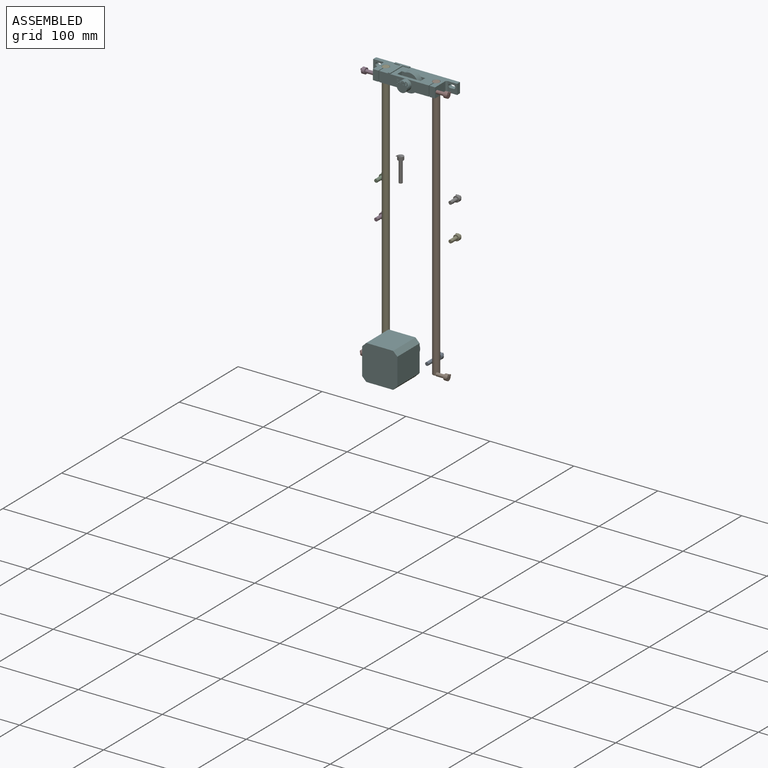
[diagram: assembled view]
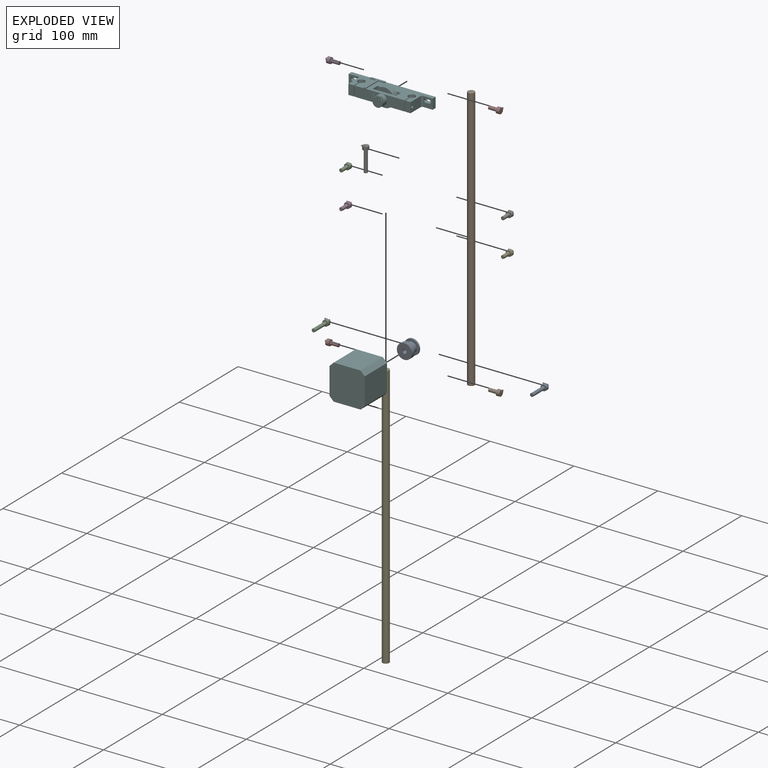
[diagram: exploded view]
GUIDED TOUR — MATED ASSEMBLY WITH SUBASSEMBLIES (Onshape document 57066dcde4b0fd3bf2ad620b, AutoMate assembly 57066dcde4b0fd3bf2ad620b_f562a61df4c0aba7eec617d7_5c54b8a93cd9b93062b6638a_default)

This assembly has 18 component occurrences arranged in 16 top-level units: 15 individual components plus 1 subassembly (S0). The tour has two levels: first the top level, where each subassembly is treated as one rigid unit; then each subassembly is toured internally in its own section (nesting deeper than one subassembly level is flattened into its subassembly's section).

Components are labeled P0..P17 across the whole record; subassembly units are labeled S0..S0. A mate is a constraint between two units; its type names the relative motion it leaves free:
  FASTENED — locks the two components together rigidly (no relative motion).
Axis/direction vectors are unit vectors and 'through' points are millimeter coordinates, both in the assembly's world frame.

TOP-LEVEL MATES (between units; each subassembly's internal mates are listed in its own section)
  1. FASTENED "Fastened 1": S0 <-> P14, direction (0.000, 0.000, 1.000) through (19.94, 8.96, 154.14) mm
  2. FASTENED "Fastened 13": P7 <-> S0, direction (-1.000, 0.000, 0.000) through (86.94, -0.08, 148.14) mm
  3. FASTENED "Fastened 12": P12 <-> S0, direction (1.000, 0.000, 0.000) through (12.94, -0.11, 148.14) mm
  4. FASTENED "Fastened 16": P8 <-> P15, direction (0.000, 1.000, 0.000) through (49.94, -2.31, -140.36) mm

TOP-LEVEL ASSEMBLY ORDER
  1. P8 — the base component [order verified]
  2. P15 [order verified]
  3. P14 [order verified]
  4. P10 [order verified]
  5. S0 [order verified]
  6. P16 [order verified]
  7. P7 [order verified]
  8. P12 [order verified]
  9. P6 [order verified]
  10. P4 [order verified]
  11. P3 [order verified]
  12. P11 [order verified]
  13. P17 [order verified]
  14. P1 [order verified]
  15. P2 [order verified]
  16. P0 [order verified]
Order-tag legend:
  [order verified] — this step's position reverses a verified removal order: the component was checked to insert without passing through the ones already placed.

Of the 18 component occurrences, 1 carries the full construction recipe — the FeatureScript program that regenerates the part's solid from scratch; the rest are supplied as boundary geometry only. Each toured unit is shown spotlighted twice — assembled, then exploded with a leader line back to its socket (green = recipe-attached component, orange = geometry-only, blue = subassembly unit; the rest desaturated gray).
NOTE — this tour is split across 2 documents so each fits a 32k-token context. This is document 1: the component sections continue in the remaining 1 document, each repeating the header above.
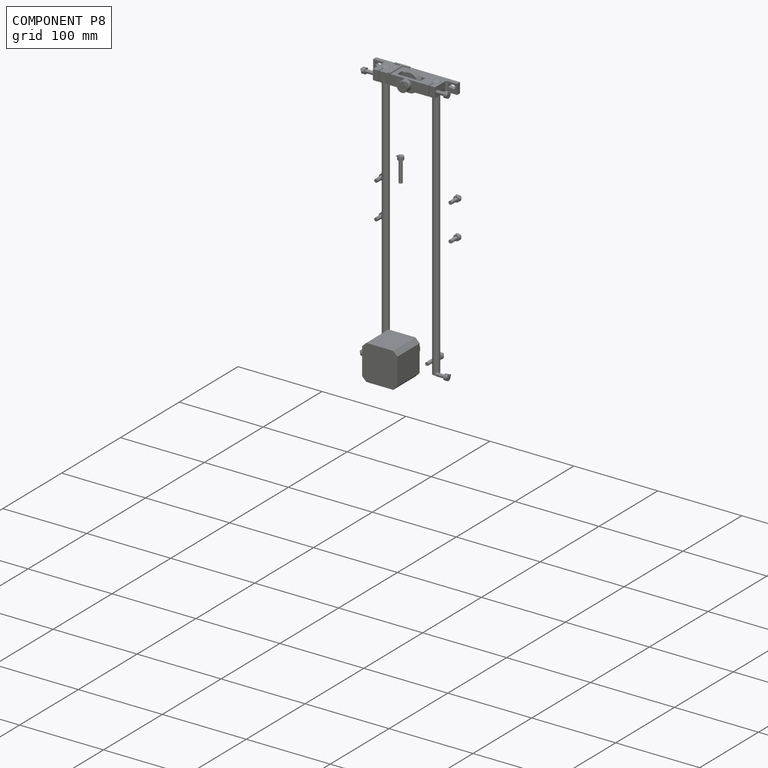
[diagram: component P8 — assembled]
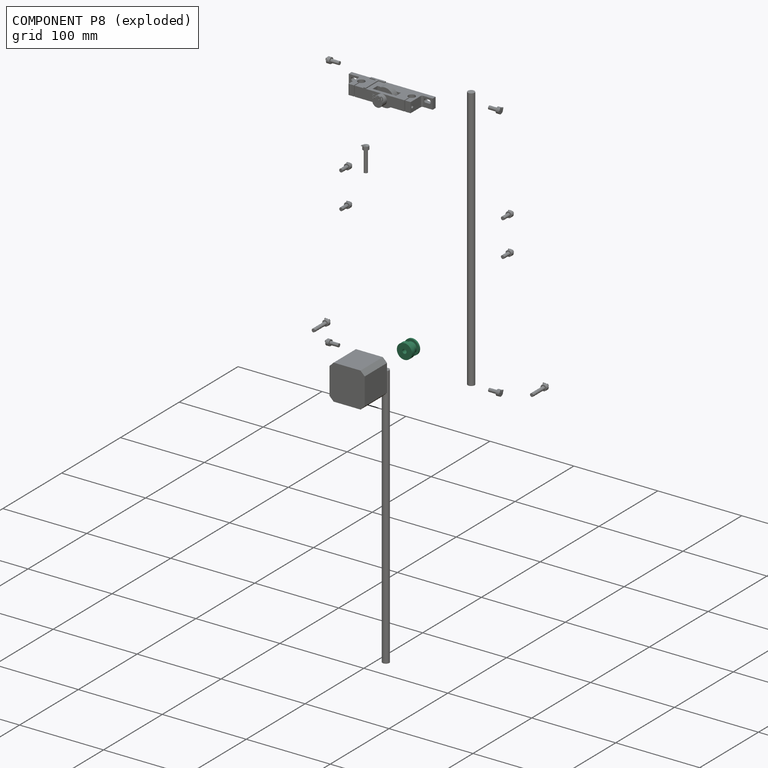
[diagram: component P8 — exploded]
COMPONENT P8 — recipe-attached (CADFS 00950962, mesh-verified: the recipe's output STEP matches this component's geometry to below the mesh-comparison resolution (tessellation chordal tolerance ~0.0435 mm)).
Held by: FASTENED mate "Fastened 16" to P15.
Construction recipe (FeatureScript — the CAD program that rebuilds this solid; sketch coordinates are in the units given by the * unit suffixes, e.g. mm):

FeatureScript 1511;
import(path : "onshape/std/geometry.fs", version : "1511.0");
import(path : "onshape/std/common.fs", version : "1511.0");
const mm = millimeter;
const VERTEX = EntityType.VERTEX;
const EDGE = EntityType.EDGE;
const FACE = EntityType.FACE;
const BODY = EntityType.BODY;
function v(x, y){return vector(x, y);}
function OD(order){return orderDisambiguation(order);}
function OSD(set){return originalSetDisambiguation(set);}
function TD(topology){return topologyDisambiguation(topology);}
function TDD(query){return trueDependencyDisambiguation(query);}
function sQuery(a, b, c) {return sketchEntityQuery(a, b, c);}

annotation { "Feature Type Name" : "Feature", "Feature Type Description" : "" }
export const myFeature = defineFeature(function(context is Context, id is Id, definition is map)
    precondition{}
    {
        {
            var Q0;
            Q0=qCreatedBy(makeId("Top.planeOp"),FACE);
            var sketch = newSketch(context, id + "F0", { "sketchPlane" : qUnion([Q0])});
            skCircle(sketch, "E0", {"center": v(0, 0) * mm, "radius": 9 * mm});
            skSolve(sketch);
        }
        {
            var Q0;
            Q0=qSketchRegion(id+"F0",true);
            extrude(context, id + "F1", {"entities" : qUnion([Q0]), "depth" : 5 * mm});
        }
        {
            var Q0;
            Q0=makeQuery(id+"F1.opExtrude","CAP_FACE",FACE,{"disambiguationData":[OSD([sQuery(id+"F0.wireOp",EDGE,"E0")])],"isStart":false});
            var sketch = newSketch(context, id + "F2", { "sketchPlane" : qUnion([Q0])});
            skCircle(sketch, "E1", {"center": v(0, 0) * mm, "radius": 6.2 * mm});
            skSolve(sketch);
        }
        {
            var Q0;
            Q0=qSketchRegion(id+"F2",true);
            extrude(context, id + "F3", {"entities" : qUnion([Q0]), "operationType" : NewBodyOperationType.ADD, "depth" : 7 * mm});
        }
        {
            var Q0;
            Q0=makeQuery(id+"F3.opExtrude","CAP_FACE",FACE,{"disambiguationData":[OSD([sQuery(id+"F2.wireOp",EDGE,"E1")])],"isStart":false});
            var sketch = newSketch(context, id + "F4", { "sketchPlane" : qUnion([Q0])});
            skCircle(sketch, "E2", {"center": v(0, 0) * mm, "radius": 9 * mm});
            skSolve(sketch);
        }
        {
            var Q0;
            Q0=qSketchRegion(id+"F4",true);
            extrude(context, id + "F5", {"entities" : qUnion([Q0]), "operationType" : NewBodyOperationType.ADD, "depth" : 2 * mm});
        }
        {
            var Q0;
            Q0=makeQuery(id+"F5.opExtrude","CAP_FACE",FACE,{"disambiguationData":[OSD([sQuery(id+"F4.wireOp",EDGE,"E2")])],"isStart":false});
            var sketch = newSketch(context, id + "F6", { "sketchPlane" : qUnion([Q0])});
            skCircle(sketch, "E3", {"center": v(0, 0) * mm, "radius": 2.5 * mm});
            skSolve(sketch);
        }
        {
            var Q0;
            Q0=qSketchRegion(id+"F6",true);
            extrude(context, id + "F7", {"entities" : qUnion([Q0]), "operationType" : NewBodyOperationType.REMOVE, "oppositeDirection" : true, "depth" : 25 * mm});
        }
    });
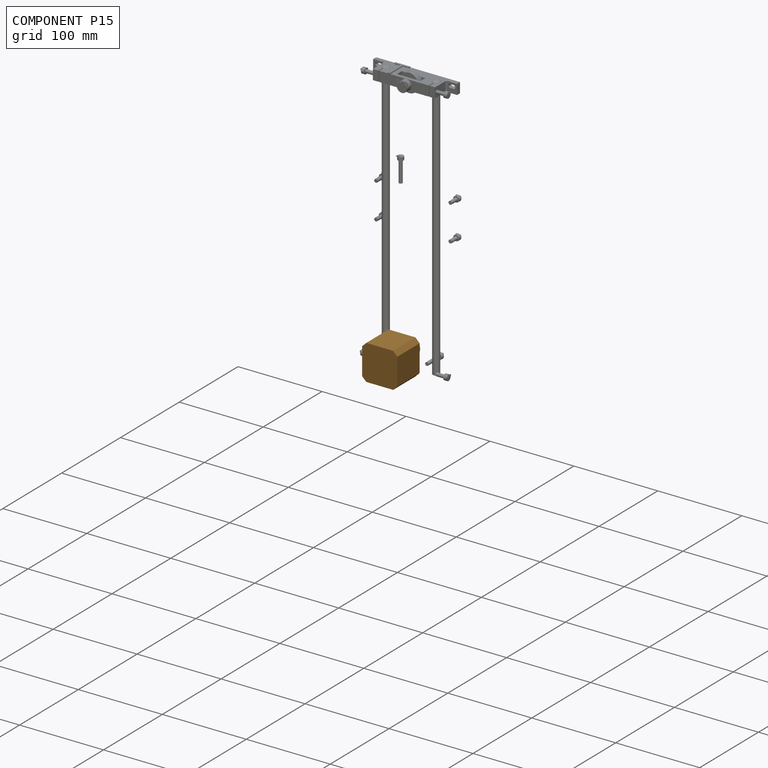
[diagram: component P15 — assembled]
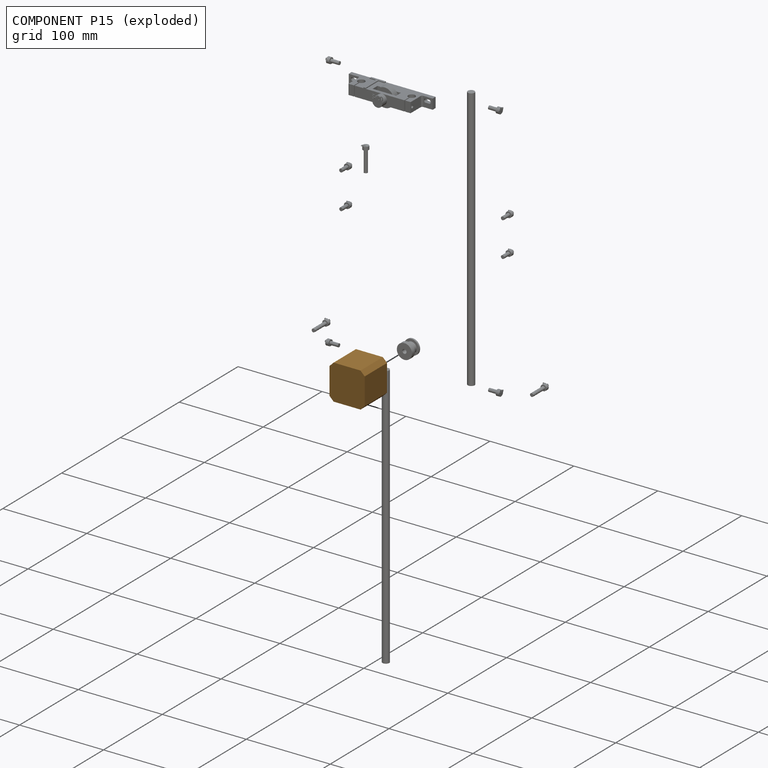
[diagram: component P15 — exploded]
COMPONENT P15 — geometry summary (no construction recipe available for this part):
  bounding box: 62.0 x 42.0 x 42.0 mm
  B-rep topology: 1 solid, 22 faces, 84 edges
  volume: 65617 mm^3 (60% of its bounding box)
  symmetry: 4-fold rotationally symmetric about the z axis; mirror-symmetric across its x mid-plane, y mid-plane
Held by: FASTENED mate "Fastened 16" to P8.
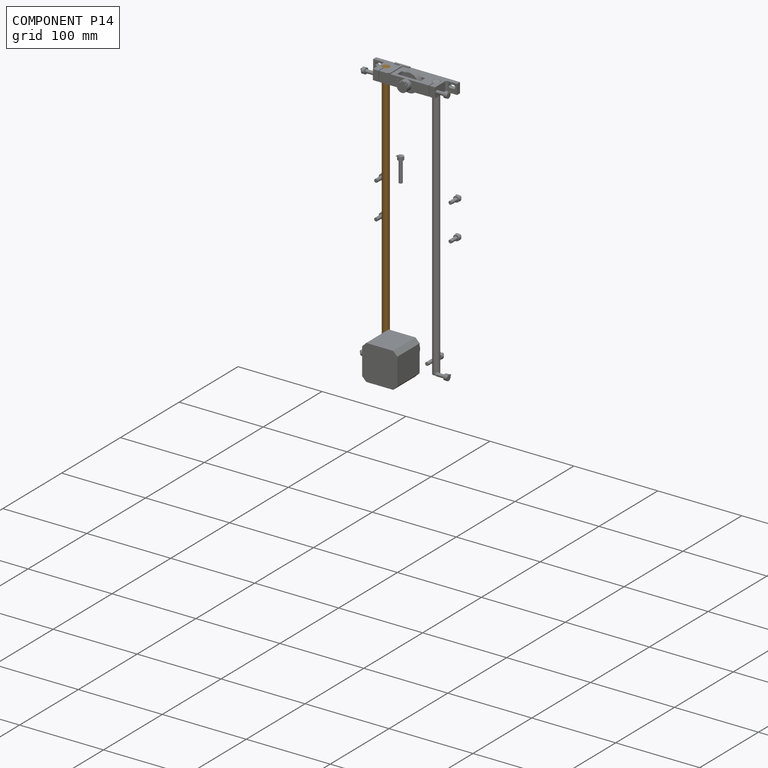
[diagram: component P14 — assembled]
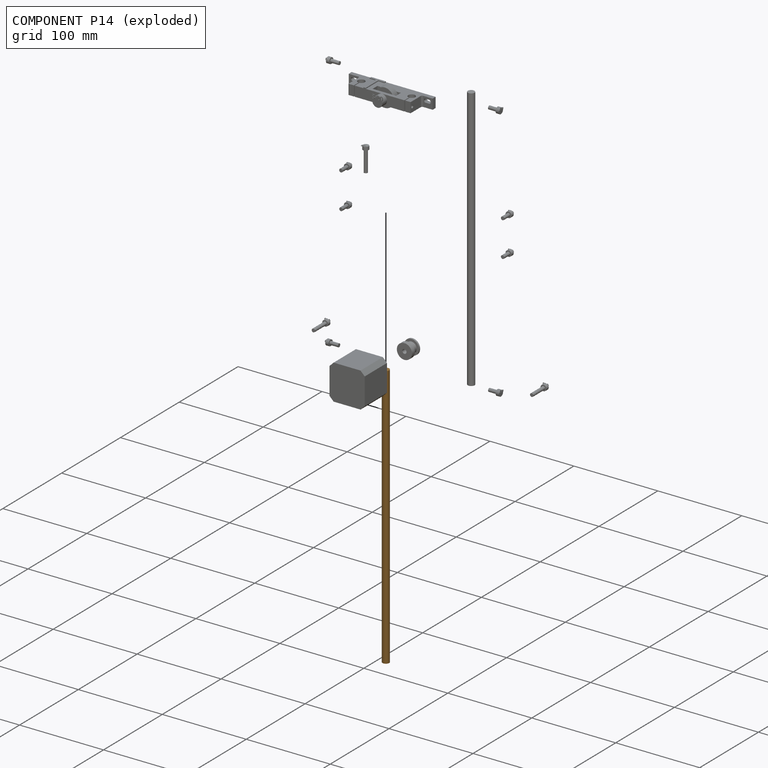
[diagram: component P14 — exploded]
COMPONENT P14 — geometry summary (no construction recipe available for this part):
  bounding box: 315.0 x 8.0 x 8.0 mm
  B-rep topology: 1 solid, 3 faces, 6 edges
  volume: 15834 mm^3 (79% of its bounding box)
  symmetry: 2-fold rotationally symmetric about the x axis; 2-fold rotationally symmetric about the y axis; revolution-symmetric about the z axis through its bounding-box center; mirror-symmetric across its x mid-plane, y mid-plane, z mid-plane
Held by: FASTENED mate "Fastened 1" to P5.
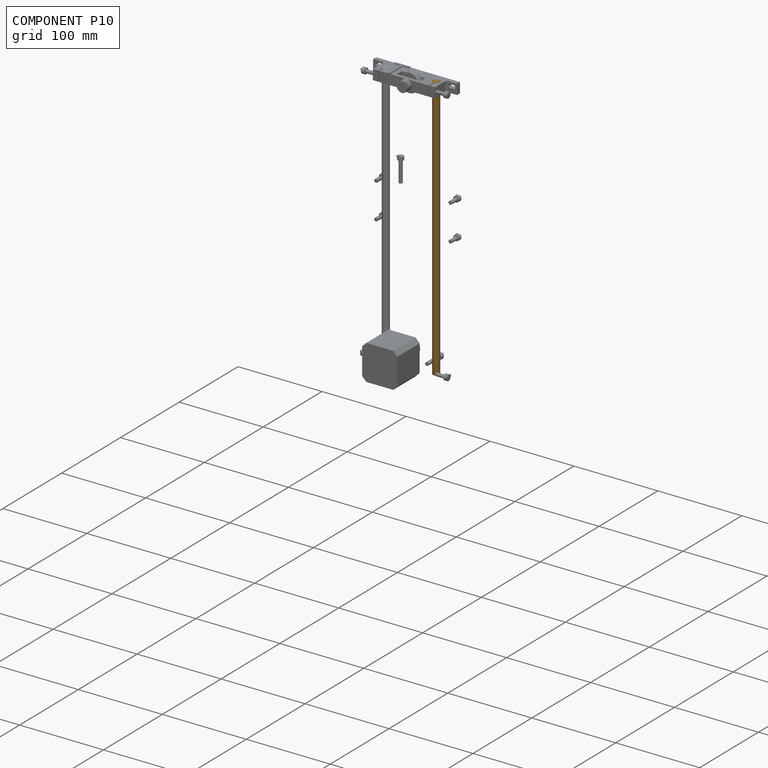
[diagram: component P10 — assembled]
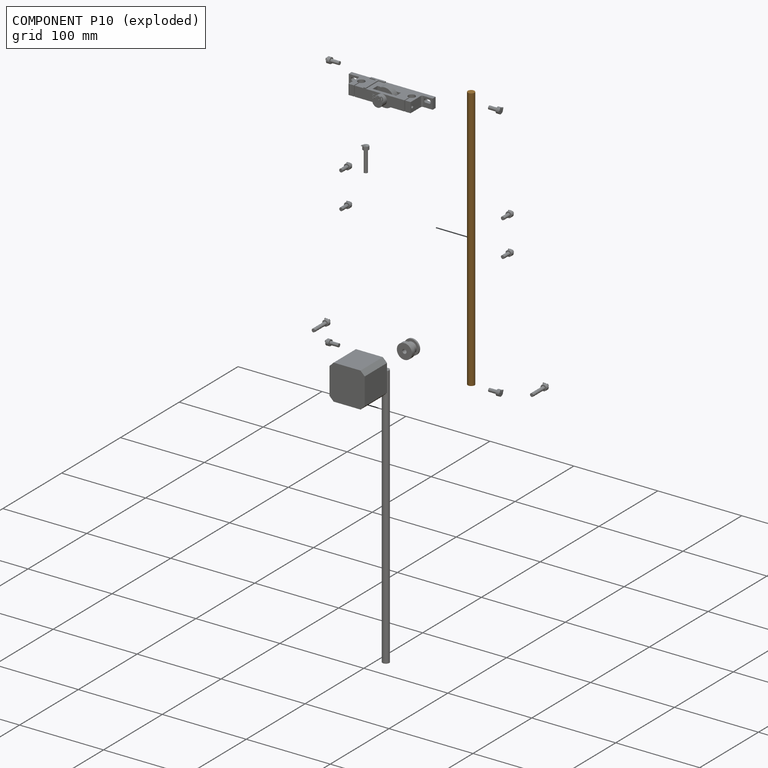
[diagram: component P10 — exploded]
COMPONENT P10 — geometry summary (no construction recipe available for this part):
  bounding box: 315.0 x 8.0 x 8.0 mm
  B-rep topology: 1 solid, 3 faces, 6 edges
  volume: 15834 mm^3 (79% of its bounding box)
  symmetry: 2-fold rotationally symmetric about the x axis; 2-fold rotationally symmetric about the y axis; revolution-symmetric about the z axis through its bounding-box center; mirror-symmetric across its x mid-plane, y mid-plane, z mid-plane
Held by: no mates (free).
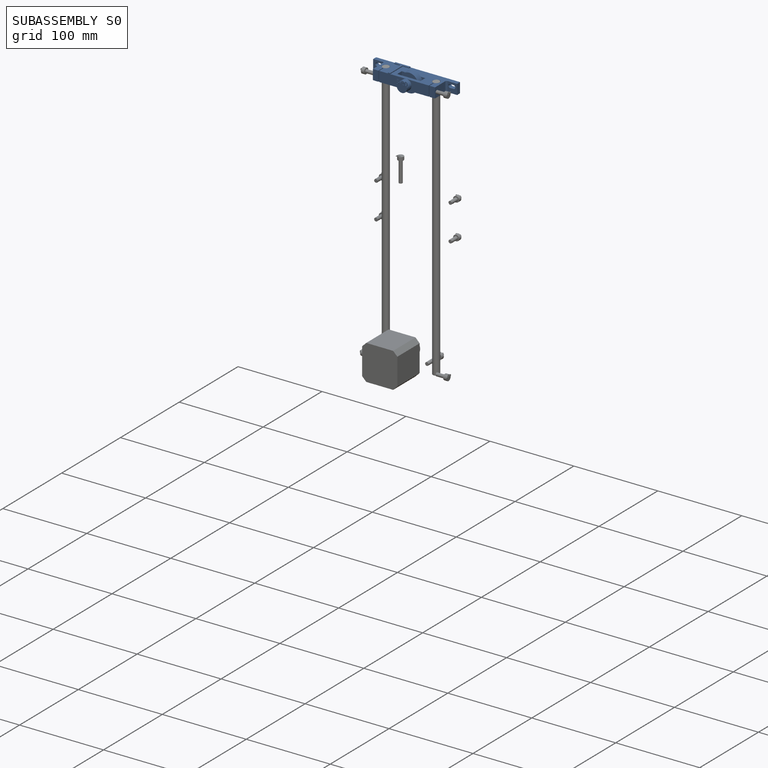
[diagram: subassembly S0 — assembled]
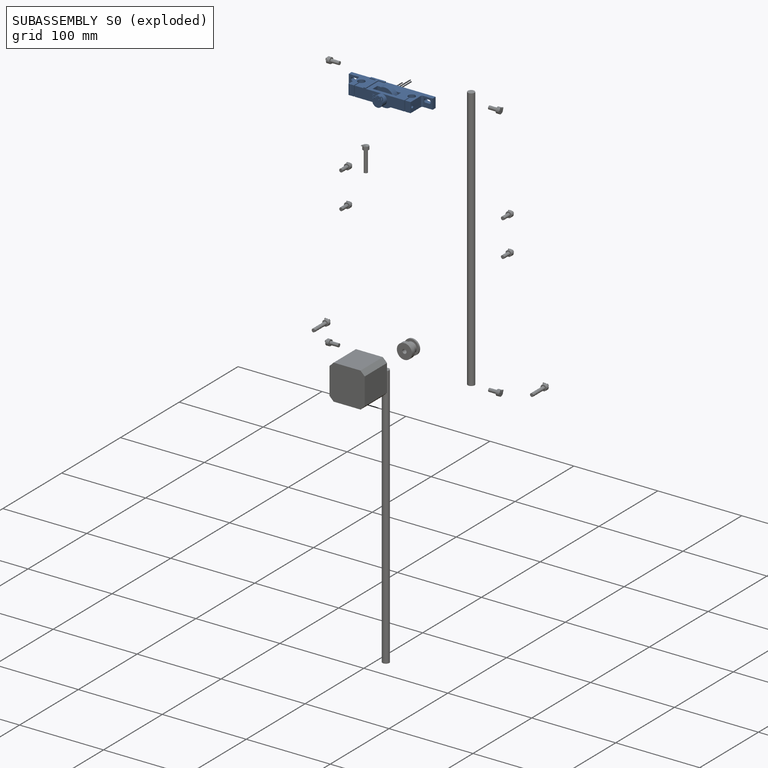
[diagram: subassembly S0 — exploded]
SUBASSEMBLY S0 — 3 components (P5, P9, P13), of which 0 recipe-attached; toured below.
Held by: FASTENED mate "Fastened 1" to P14; FASTENED mate "Fastened 13" to P7; FASTENED mate "Fastened 12" to P12.
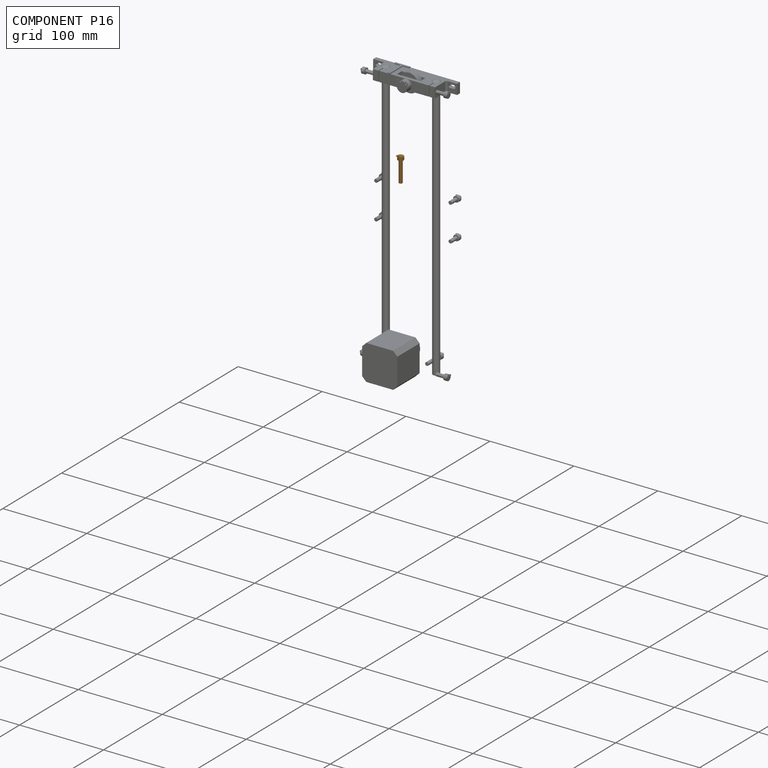
[diagram: component P16 — assembled]
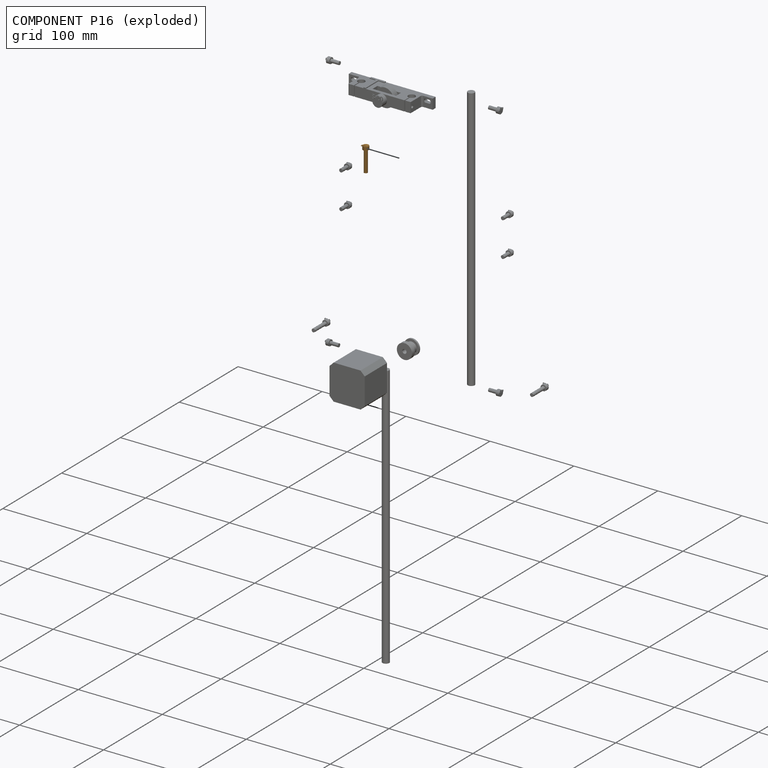
[diagram: component P16 — exploded]
COMPONENT P16 — geometry summary (no construction recipe available for this part):
  bounding box: 29.5 x 7.2 x 7.2 mm
  B-rep topology: 1 solid, 82 faces, 466 edges
  volume: 472 mm^3 (31% of its bounding box)
Held by: no mates (free).
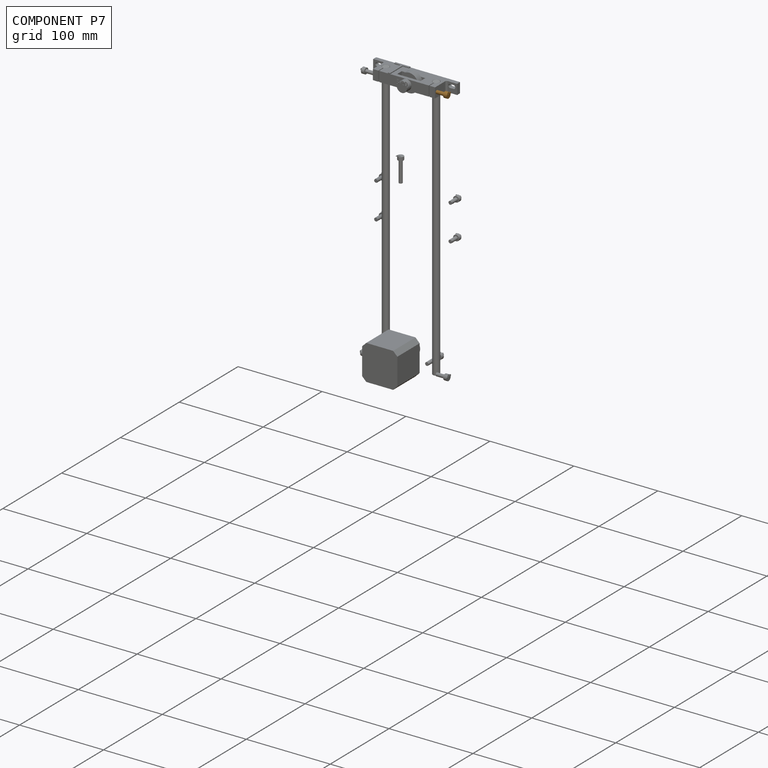
[diagram: component P7 — assembled]
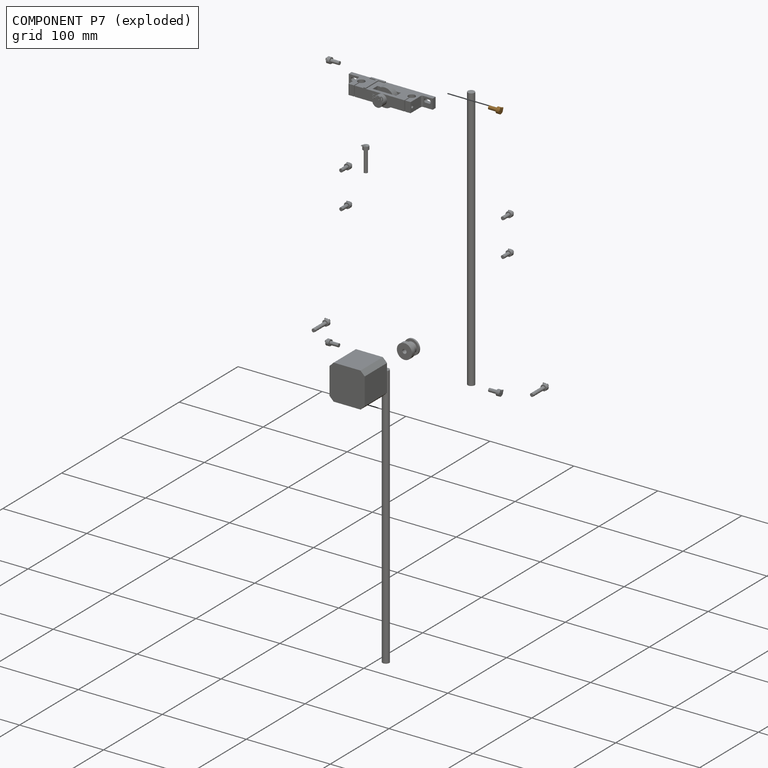
[diagram: component P7 — exploded]
COMPONENT P7 — geometry summary (no construction recipe available for this part):
  bounding box: 14.5 x 7.0 x 7.0 mm
  B-rep topology: 1 solid, 61 faces, 324 edges
  volume: 283 mm^3 (40% of its bounding box)
Held by: FASTENED mate "Fastened 13" to P5.
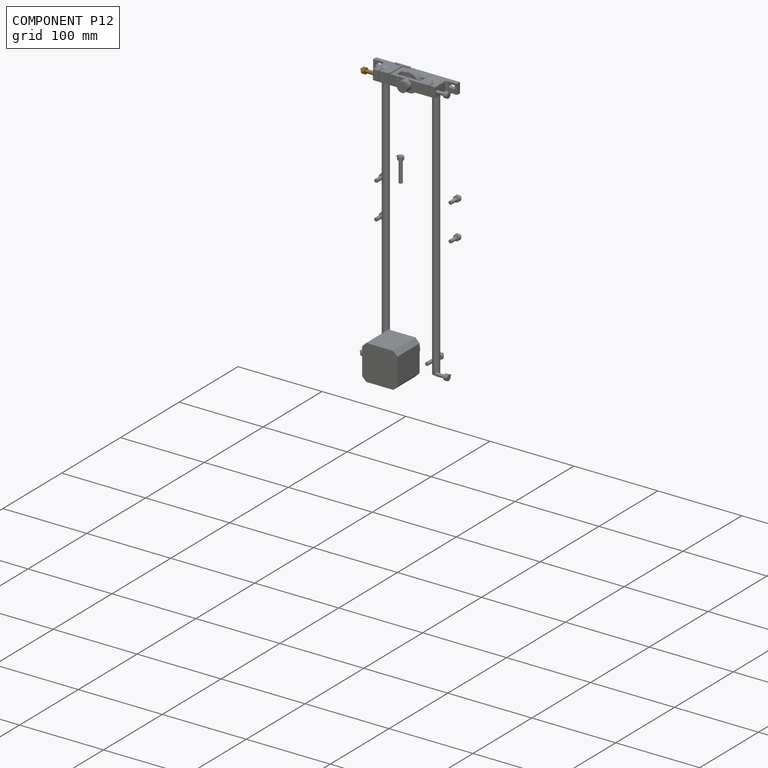
[diagram: component P12 — assembled]
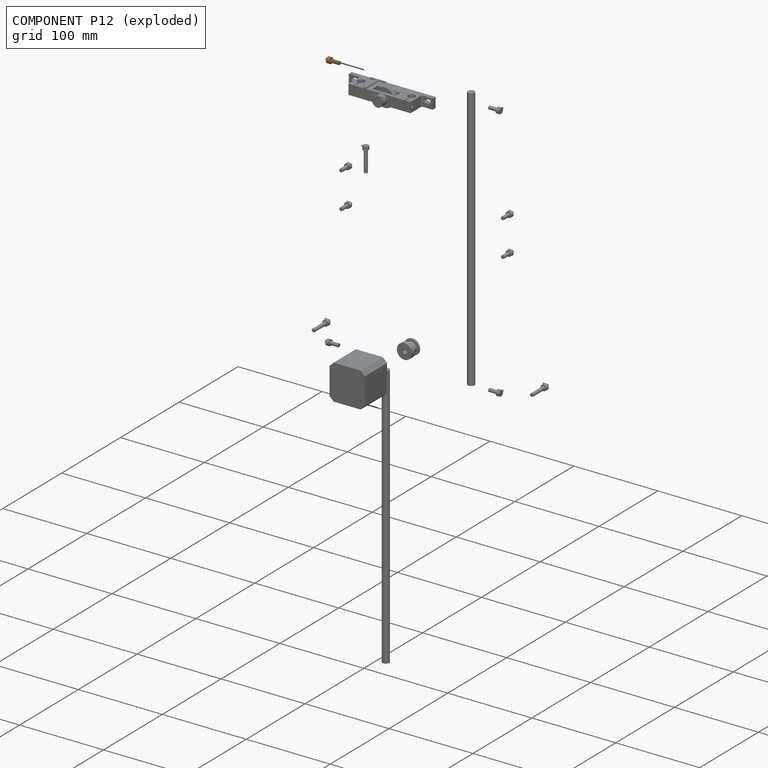
[diagram: component P12 — exploded]
COMPONENT P12 — geometry summary (no construction recipe available for this part):
  bounding box: 14.5 x 7.0 x 7.0 mm
  B-rep topology: 1 solid, 61 faces, 324 edges
  volume: 283 mm^3 (40% of its bounding box)
Held by: FASTENED mate "Fastened 12" to P5.
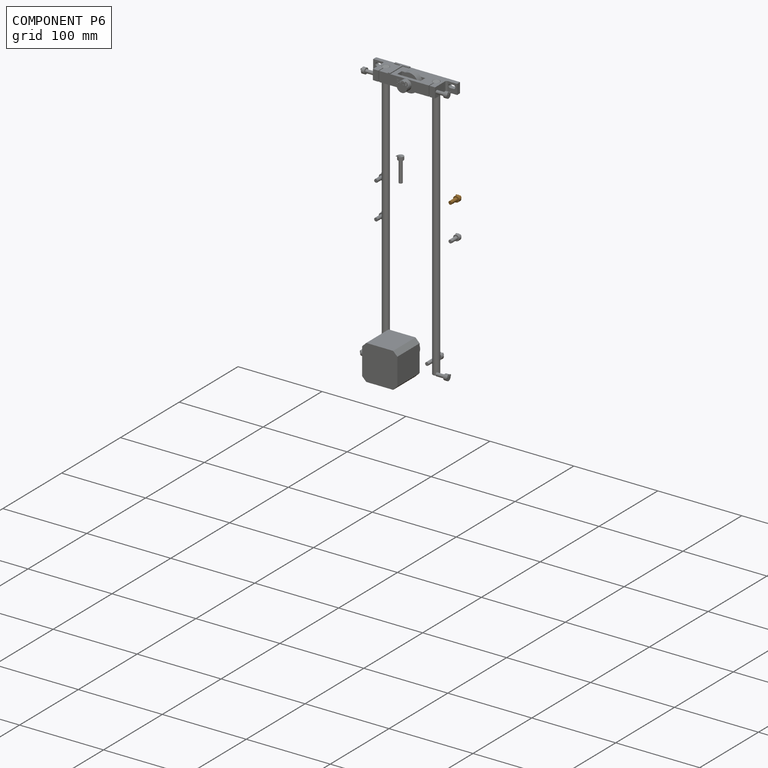
[diagram: component P6 — assembled]
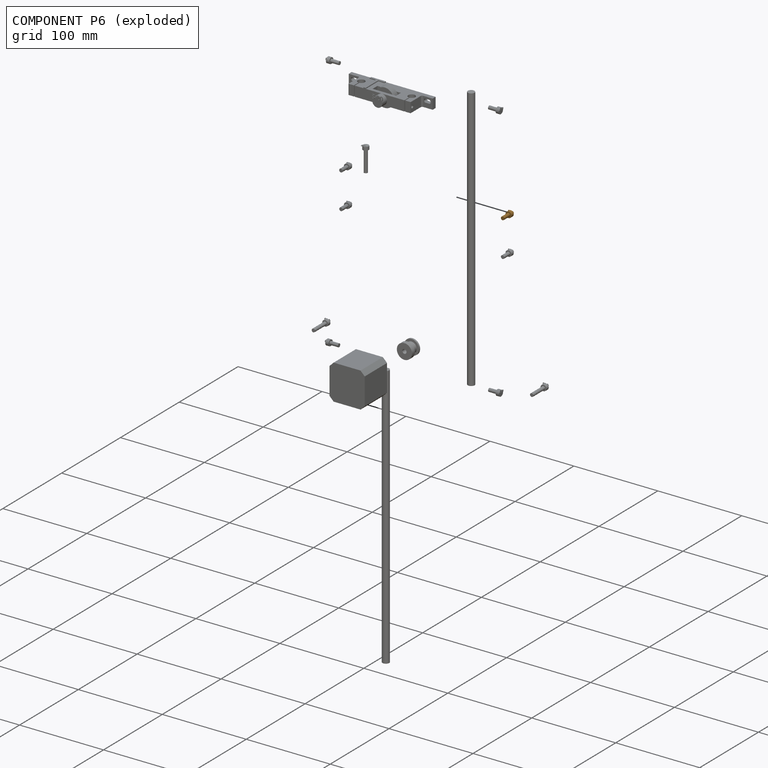
[diagram: component P6 — exploded]
COMPONENT P6 — geometry summary (no construction recipe available for this part):
  bounding box: 14.5 x 7.0 x 7.0 mm
  B-rep topology: 1 solid, 61 faces, 324 edges
  volume: 283 mm^3 (40% of its bounding box)
Held by: no mates (free).
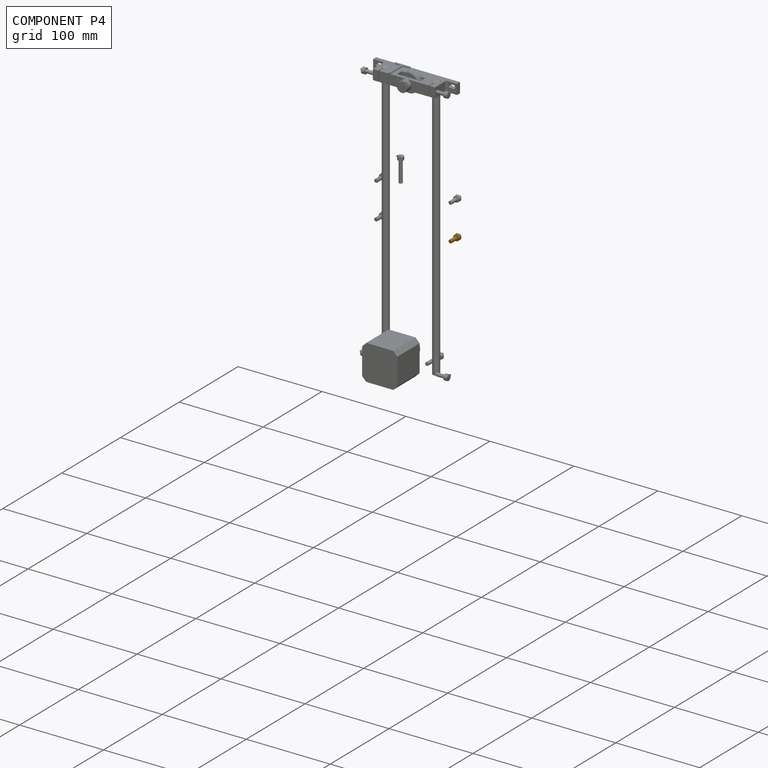
[diagram: component P4 — assembled]
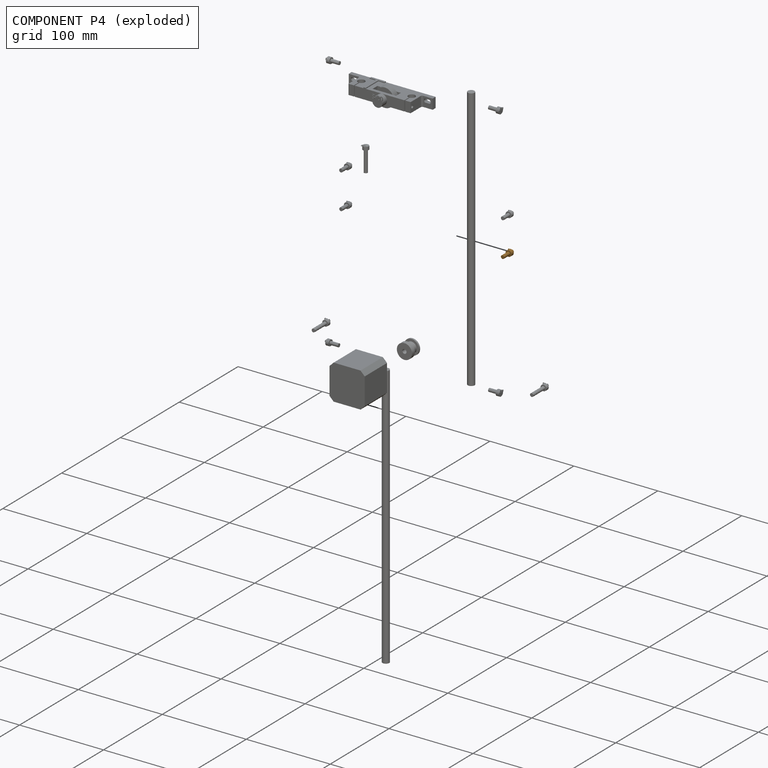
[diagram: component P4 — exploded]
COMPONENT P4 — geometry summary (no construction recipe available for this part):
  bounding box: 14.5 x 7.0 x 7.0 mm
  B-rep topology: 1 solid, 61 faces, 324 edges
  volume: 283 mm^3 (40% of its bounding box)
Held by: no mates (free).
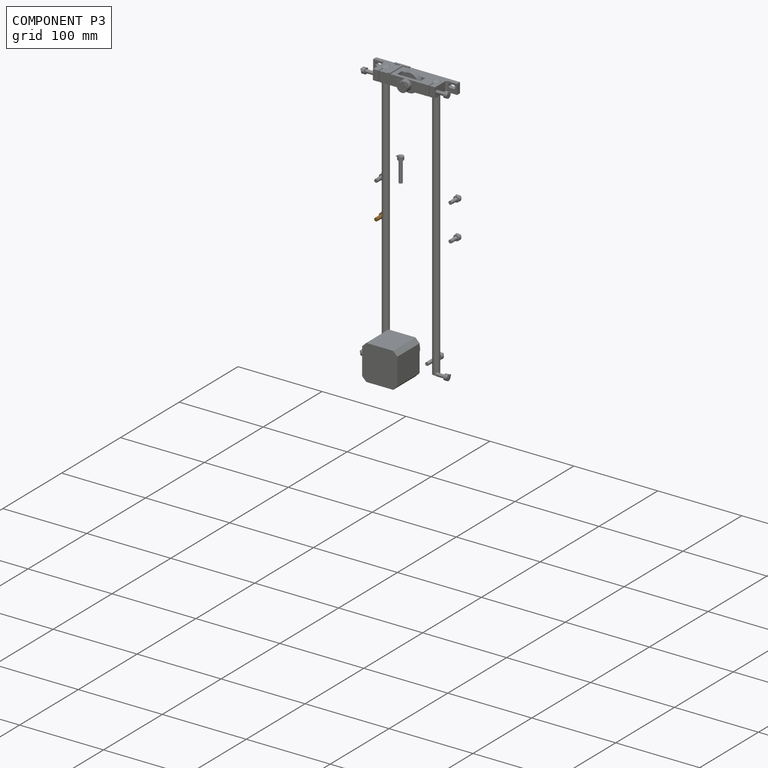
[diagram: component P3 — assembled]
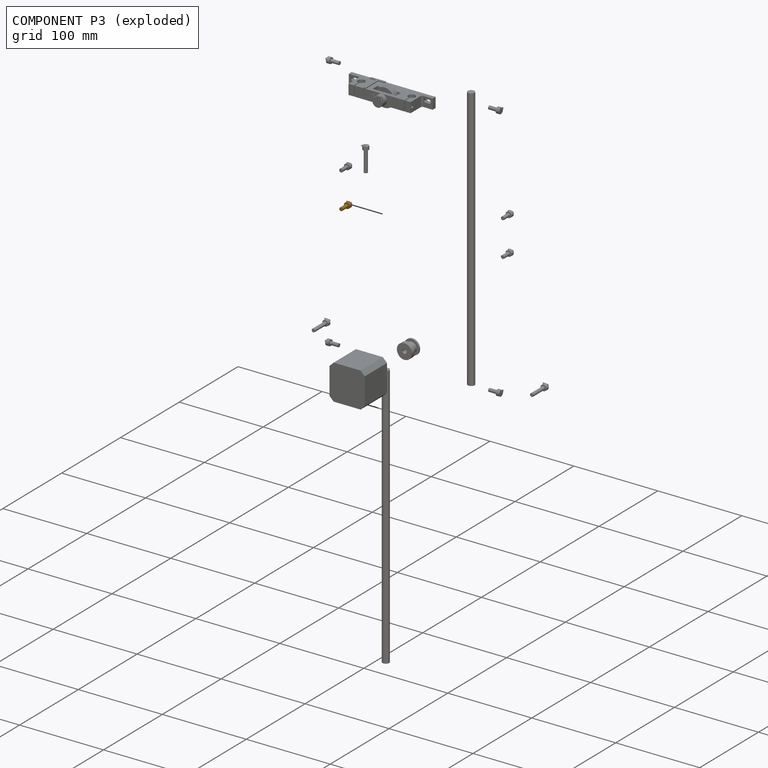
[diagram: component P3 — exploded]
COMPONENT P3 — geometry summary (no construction recipe available for this part):
  bounding box: 14.5 x 7.0 x 7.0 mm
  B-rep topology: 1 solid, 61 faces, 324 edges
  volume: 283 mm^3 (40% of its bounding box)
Held by: no mates (free).
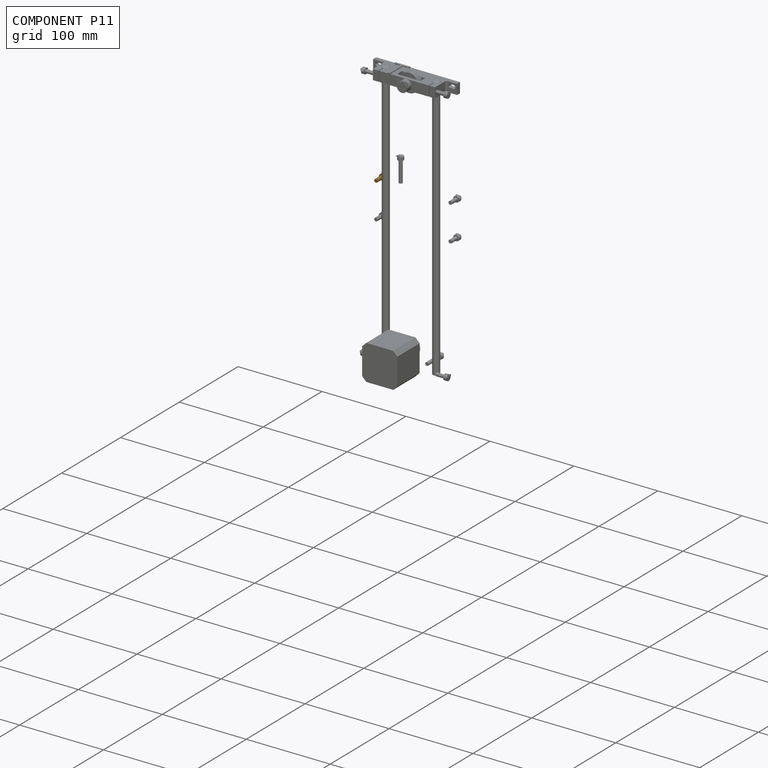
[diagram: component P11 — assembled]
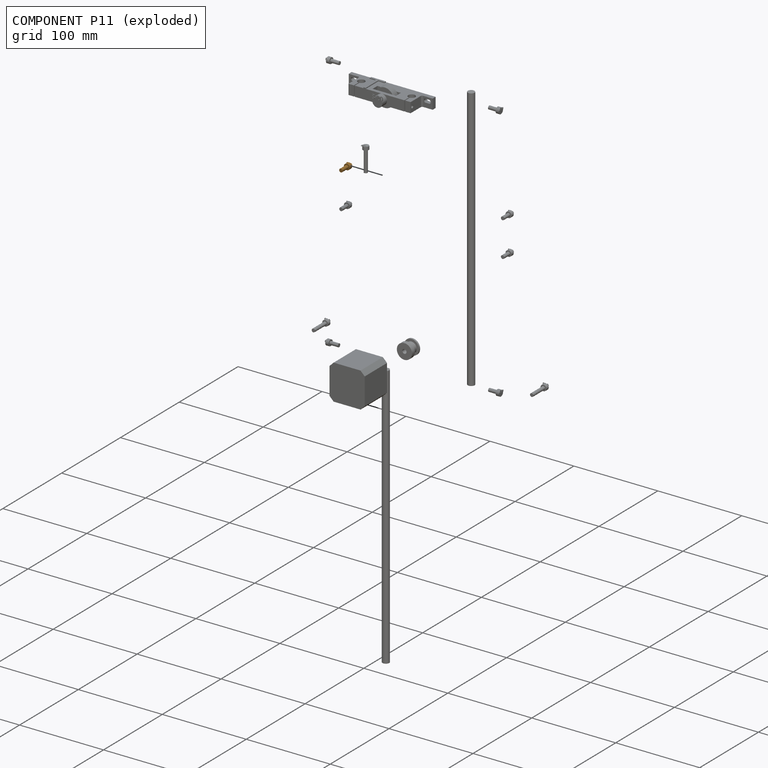
[diagram: component P11 — exploded]
COMPONENT P11 — geometry summary (no construction recipe available for this part):
  bounding box: 14.5 x 7.0 x 7.0 mm
  B-rep topology: 1 solid, 61 faces, 324 edges
  volume: 283 mm^3 (40% of its bounding box)
Held by: no mates (free).
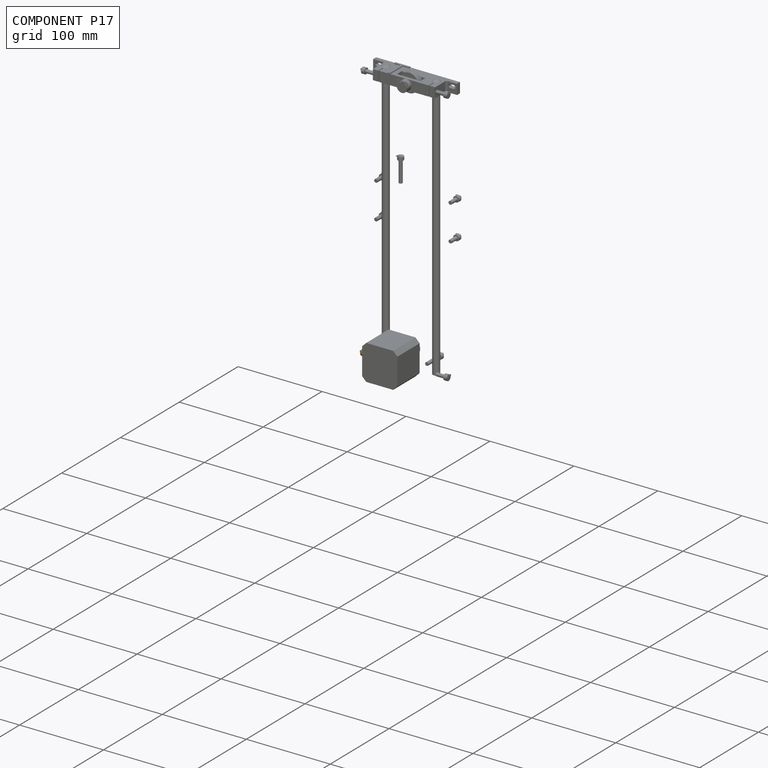
[diagram: component P17 — assembled]
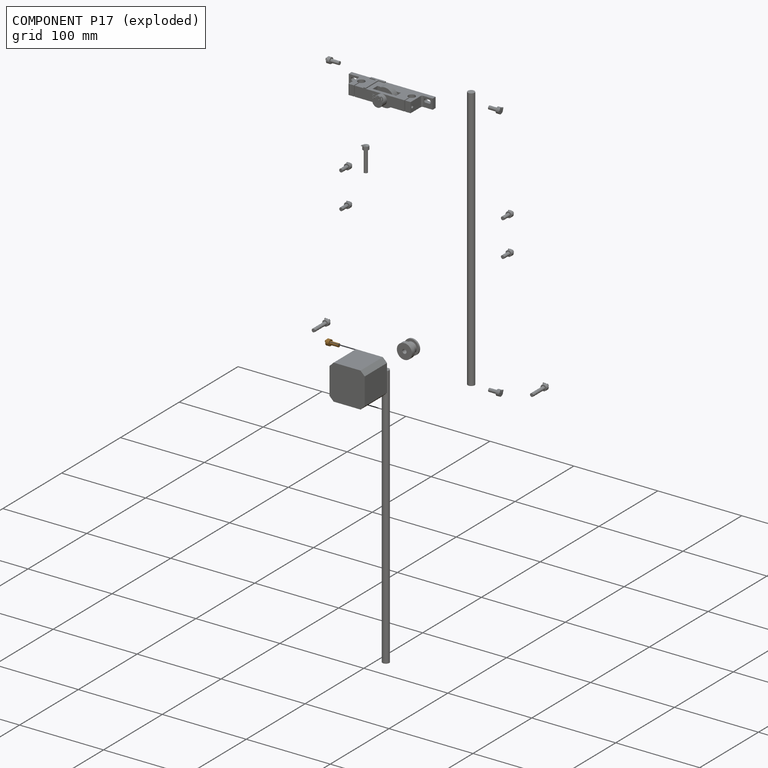
[diagram: component P17 — exploded]
COMPONENT P17 — geometry summary (no construction recipe available for this part):
  bounding box: 14.5 x 7.0 x 7.0 mm
  B-rep topology: 1 solid, 61 faces, 324 edges
  volume: 283 mm^3 (40% of its bounding box)
Held by: no mates (free).
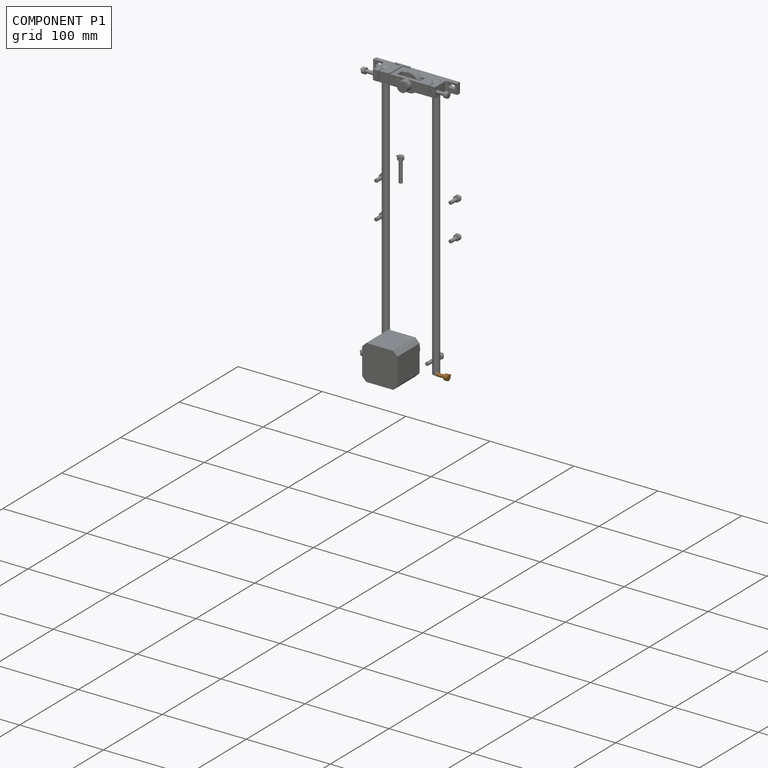
[diagram: component P1 — assembled]
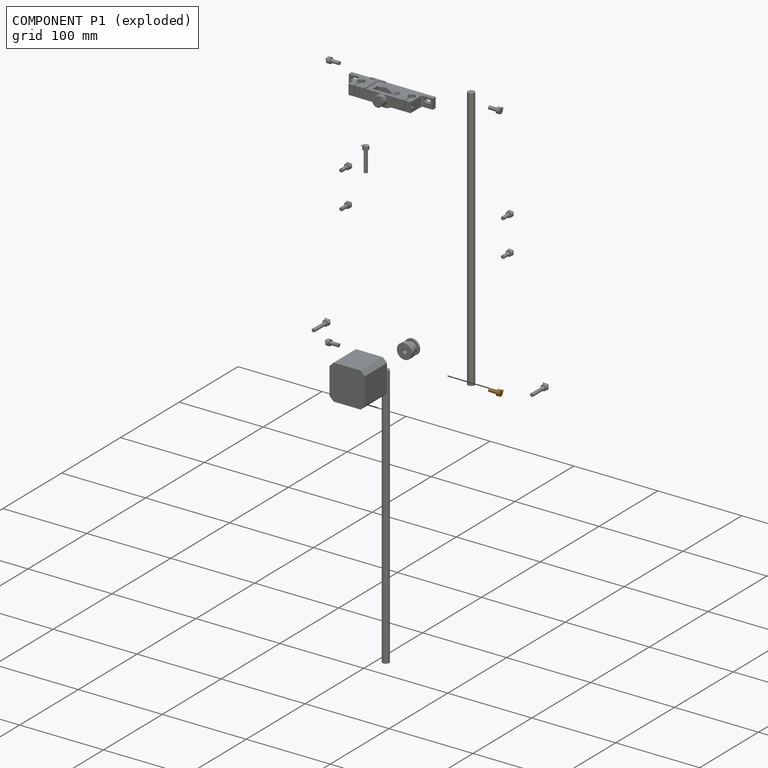
[diagram: component P1 — exploded]
COMPONENT P1 — geometry summary (no construction recipe available for this part):
  bounding box: 14.5 x 7.0 x 7.0 mm
  B-rep topology: 1 solid, 61 faces, 324 edges
  volume: 283 mm^3 (40% of its bounding box)
Held by: no mates (free).
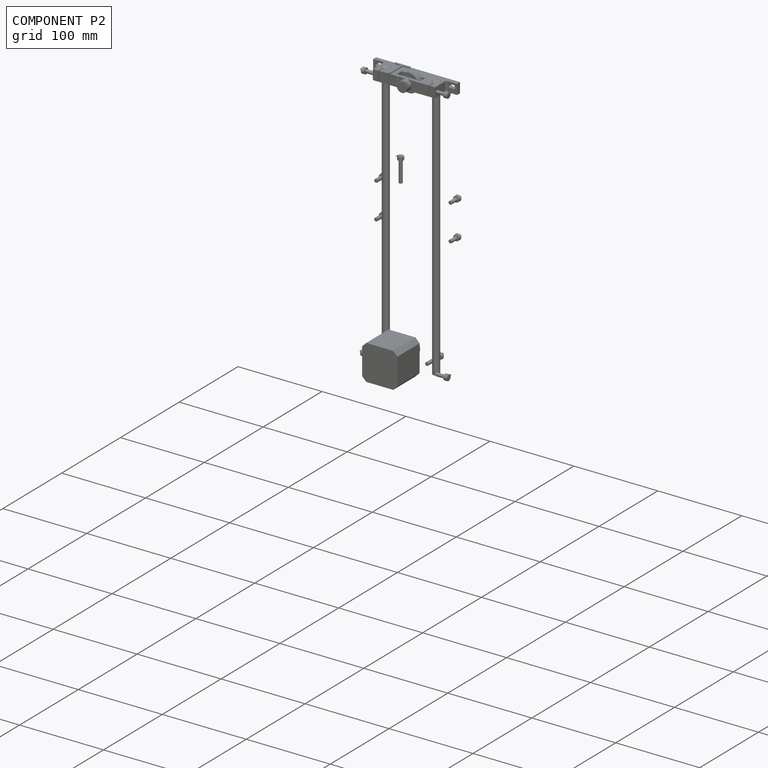
[diagram: component P2 — assembled]
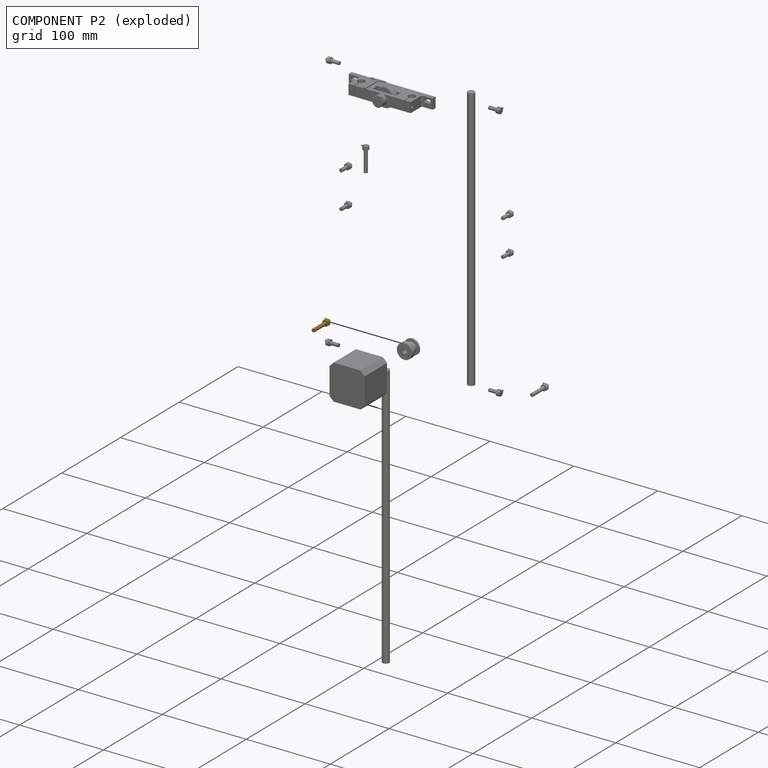
[diagram: component P2 — exploded]
COMPONENT P2 — geometry summary (no construction recipe available for this part):
  bounding box: 24.5 x 7.2 x 7.1 mm
  B-rep topology: 1 solid, 76 faces, 424 edges
  volume: 409 mm^3 (33% of its bounding box)
Held by: no mates (free).
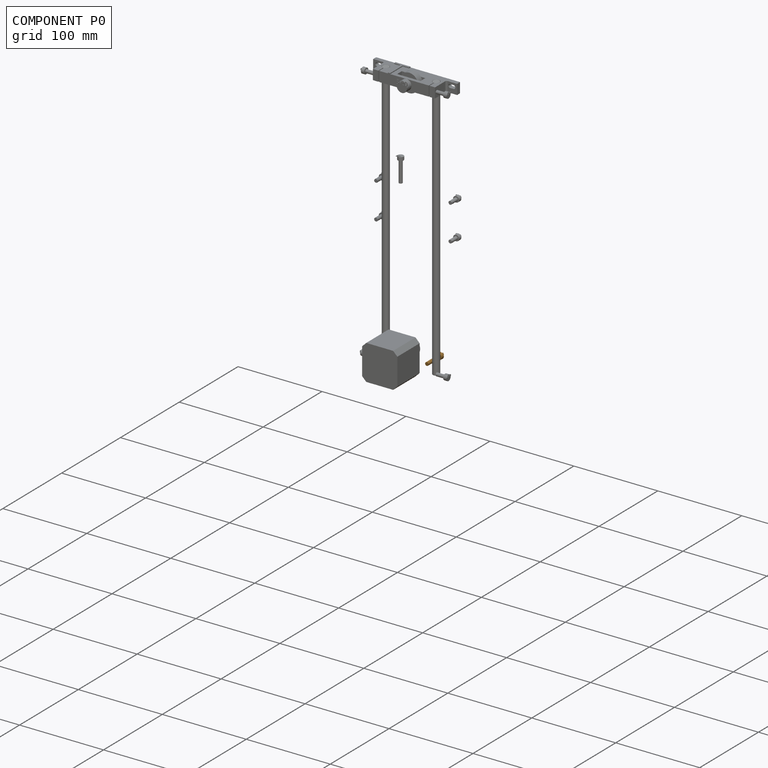
[diagram: component P0 — assembled]
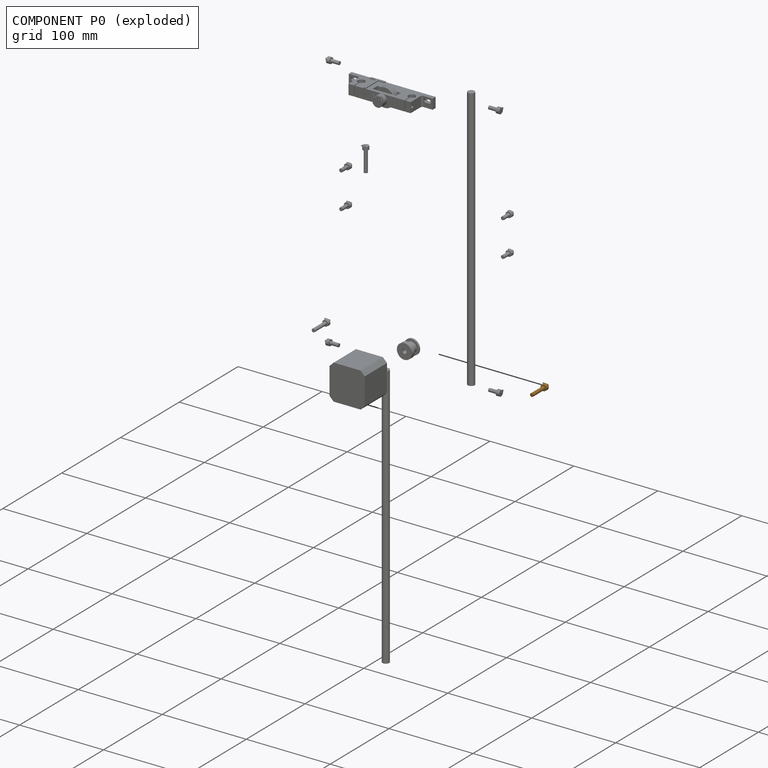
[diagram: component P0 — exploded]
COMPONENT P0 — geometry summary (no construction recipe available for this part):
  bounding box: 24.5 x 7.2 x 7.1 mm
  B-rep topology: 1 solid, 76 faces, 424 edges
  volume: 409 mm^3 (33% of its bounding box)
Held by: no mates (free).
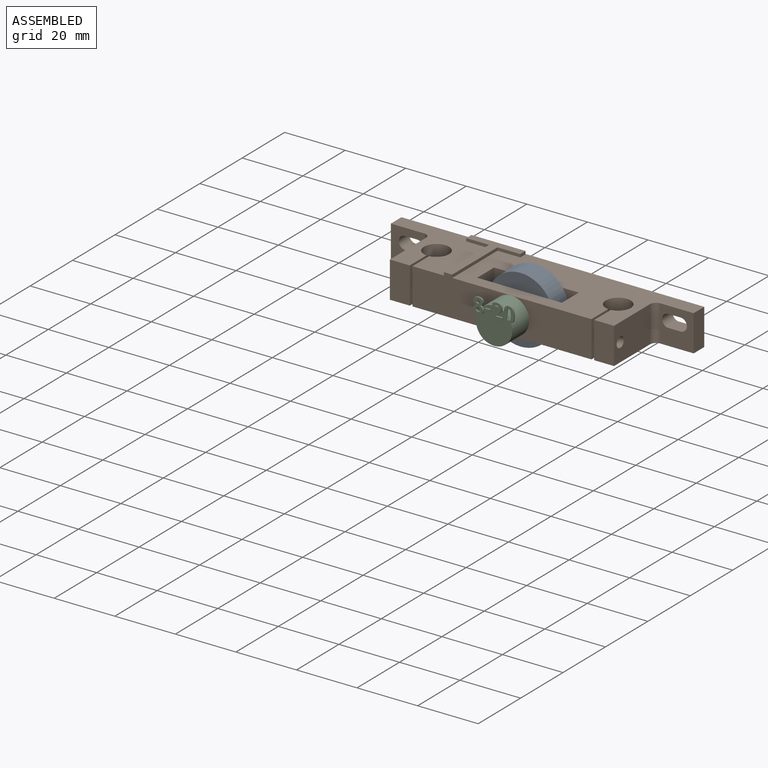
[diagram: subassembly S0 — assembled view]
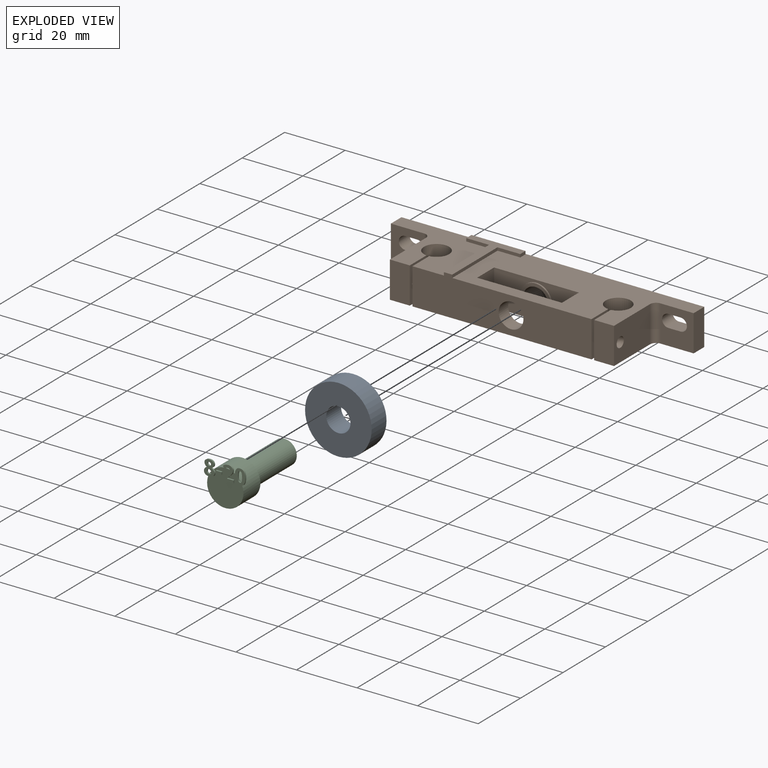
[diagram: subassembly S0 — exploded view]
SUBASSEMBLY S0 TOUR — 3 components, shown here in isolation at its own camera.

INTERNAL MATES
  1. FASTENED "Fastened 1": P5 <-> P9, direction (0.000, 1.000, 0.000) through (52.94, 8.46, 148.14) mm
  2. FASTENED "Fastened 2": P13 <-> P9, direction (0.000, 1.000, 0.000) through (52.94, -3.04, 148.14) mm
  3. FASTENED "Fastened 1": P5 <-> P9, direction (0.000, 1.000, 0.000) through (52.94, 8.46, 148.14) mm
  4. FASTENED "Fastened 2": P13 <-> P9, direction (0.000, 1.000, 0.000) through (52.94, -3.04, 148.14) mm

ASSEMBLY ORDER (within the subassembly)
  1. P9 — the base component [order verified]
  2. P5 [order verified]
  3. P13 [order verified]
Order-tag legend:
  [order verified] — this step's position reverses a verified removal order: the component was checked to insert without passing through the ones already placed.
